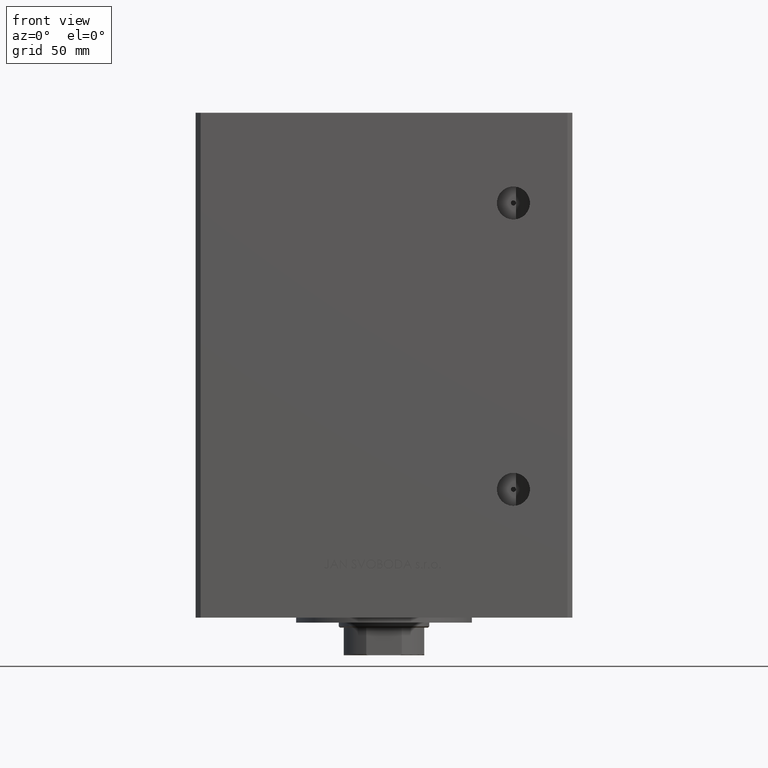
[diagram: clean part render]
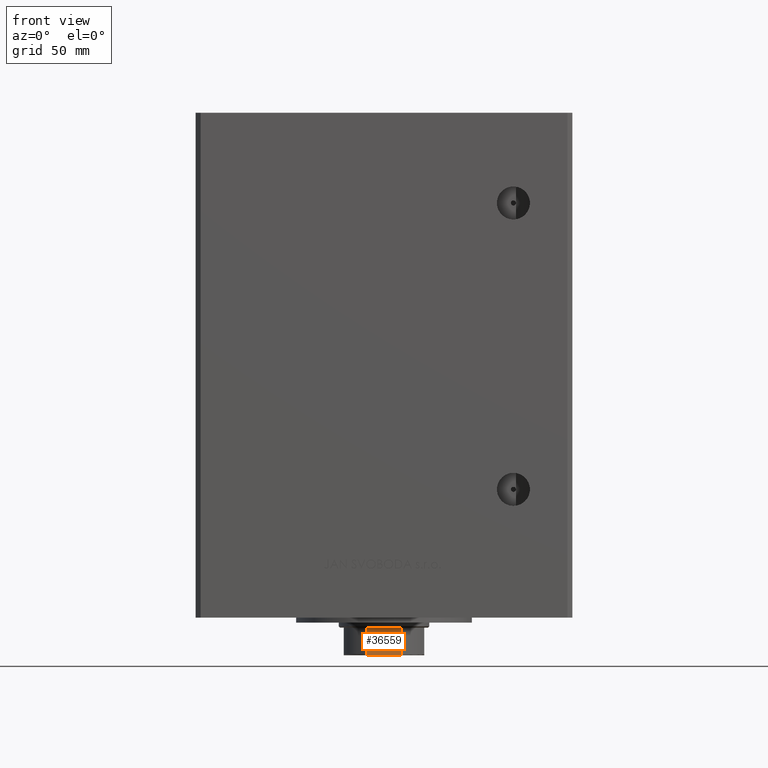
[diagram: same view with one face highlighted and labeled with its STEP entity id]
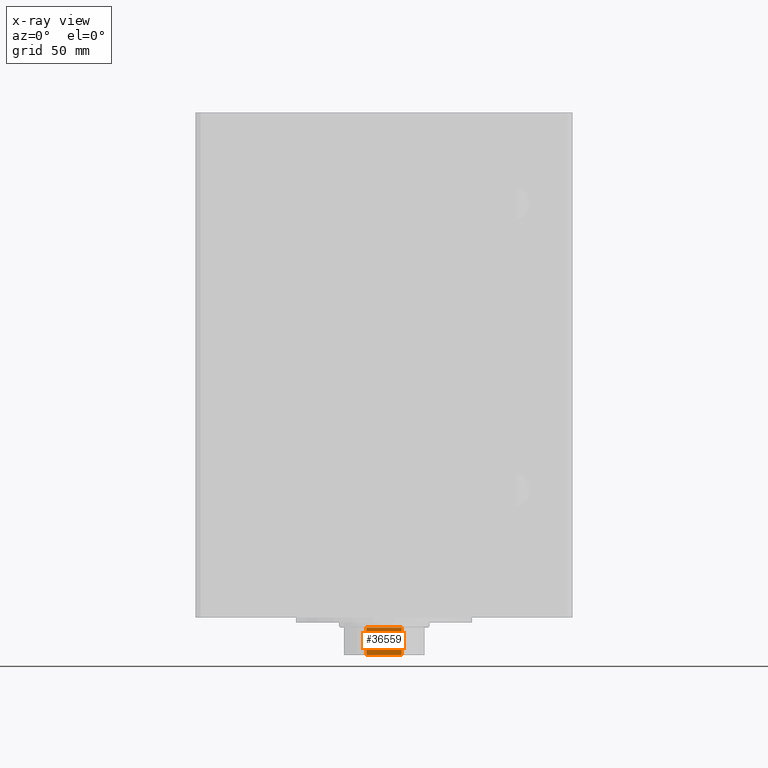
[diagram: x-ray of the same camera — body ghosted, the highlighted face saturated]
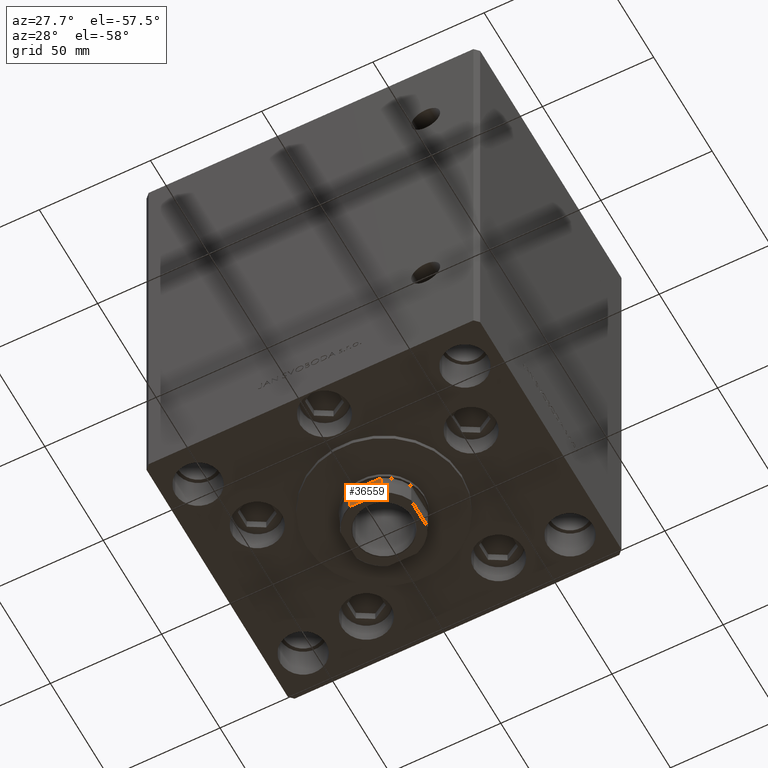
[diagram: same view with one face highlighted and labeled with its STEP entity id]
A machine part, front view. The second image highlights one B-rep face of the part: STEP entity #36559.
The next image is the same camera in x-ray: the body ghosted, the highlighted face saturated — about 0% of this face is hidden behind the body in this view.
A second angle (auxiliary view) of the same face is appended — the face is thin or edge-on in the first view.
In plain terms, the highlighted planar face has unit normal (0, 1, 0).
Its self-contained STEP definition (entity closure, byte-faithful):
#1227 = ORIENTED_EDGE ( 'NONE', *, *, #10283, .T. ) ;
#2907 = VERTEX_POINT ( 'NONE', #25480 ) ;
#3175 = EDGE_CURVE ( 'NONE', #18434, #43580, #17860, .T. ) ;
#3967 = EDGE_LOOP ( 'NONE', ( #19454, #36262, #37146, #1227, #8236, #43670 ) ) ;
#7144 = CARTESIAN_POINT ( 'NONE',  ( -7.088723439378916247, -16.00000000000000000, 171.5000000000000000 ) ) ;
#8236 = ORIENTED_EDGE ( 'NONE', *, *, #29548, .T. ) ;
#8561 = CARTESIAN_POINT ( 'NONE',  ( 6.914772706552263060, -16.00000000000000000, 182.2576711345670901 ) ) ;
#9345 = PLANE ( 'NONE',  #23329 ) ;
#9569 = CARTESIAN_POINT ( 'NONE',  ( -6.967626683430006018, -16.00000000000000000, 182.2212986014228875 ) ) ;
#10027 = CARTESIAN_POINT ( 'NONE',  ( 7.088723439378916247, -16.00000000000000000, -0.001000000000001000089 ) ) ;
#10283 = EDGE_CURVE ( 'NONE', #10939, #2907, #22535, .T. ) ;
#10489 = CARTESIAN_POINT ( 'NONE',  ( 5.999773414835122942, -16.00000000000000355, 182.5000000000000853 ) ) ;
#10939 = VERTEX_POINT ( 'NONE', #7144 ) ;
#12369 = CARTESIAN_POINT ( 'NONE',  ( 7.055665994487712034, -16.00000000000000000, 182.1256422470903829 ) ) ;
#12939 = CARTESIAN_POINT ( 'NONE',  ( -15.99999999999999645, -16.00000000000000355, 182.5000000000000284 ) ) ;
#13124 = CARTESIAN_POINT ( 'NONE',  ( -5.744562646538029504, -16.00000000000000355, 182.5000000000000284 ) ) ;
#13367 = CARTESIAN_POINT ( 'NONE',  ( -6.251780714621276047, -16.00000000000000355, 182.4805079891187347 ) ) ;
#14844 = EDGE_CURVE ( 'NONE', #10939, #43580, #30631, .T. ) ;
#16697 = CARTESIAN_POINT ( 'NONE',  ( -7.088723439378916247, -16.00000000000000000, 182.0000000000000284 ) ) ;
#17860 = B_SPLINE_CURVE_WITH_KNOTS ( 'NONE', 3,
 ( #13124, #28665, #13367, #31732, #47460, #21268, #9569, #20773, #28905, #16697 ),
 .UNSPECIFIED., .F., .F.,
 ( 4, 2, 2, 2, 4 ),
 ( 0.000000000000000000, 0.0007561879621635630858, 0.001134281943245333841, 0.001323328933786239656, 0.001512375924327145904 ),
 .UNSPECIFIED. ) ;
#18434 = VERTEX_POINT ( 'NONE', #30372 ) ;
#19454 = ORIENTED_EDGE ( 'NONE', *, *, #48671, .F. ) ;
#19576 = VECTOR ( 'NONE', #25392, 1000.000000000000000 ) ;
#20773 = CARTESIAN_POINT ( 'NONE',  ( -7.055793701721071898, -15.99999999999999645, 182.1256279161198108 ) ) ;
#21268 = CARTESIAN_POINT ( 'NONE',  ( -6.914158745692617458, -16.00000000000000355, 182.2581288012990512 ) ) ;
#21479 = DIRECTION ( 'NONE',  ( -0.000000000000000000, -0.000000000000000000, 1.000000000000000000 ) ) ;
#22001 = DIRECTION ( 'NONE',  ( -0.000000000000000000, -0.000000000000000000, 1.000000000000000000 ) ) ;
#22035 = EDGE_CURVE ( 'NONE', #36136, #27402, #35267, .T. ) ;
#22535 = LINE ( 'NONE', #45417, #40437 ) ;
#23329 = AXIS2_PLACEMENT_3D ( 'NONE', #32741, #24853, #36557 ) ;
#23751 = CARTESIAN_POINT ( 'NONE',  ( 7.088723439378916247, -16.00000000000000000, 182.0000000000000284 ) ) ;
#24577 = CARTESIAN_POINT ( 'NONE',  ( 5.744562646538024175, -16.00000000000000355, 182.5000000000000284 ) ) ;
#24853 = DIRECTION ( 'NONE',  ( -1.084202172485504557E-16, 1.000000000000000000, 0.000000000000000000 ) ) ;
#25160 = VECTOR ( 'NONE', #22001, 1000.000000000000000 ) ;
#25392 = DIRECTION ( 'NONE',  ( 1.000000000000000000, 1.084202172485504434E-16, 0.000000000000000000 ) ) ;
#25480 = CARTESIAN_POINT ( 'NONE',  ( 7.088723439378916247, -16.00000000000000000, 171.5000000000000000 ) ) ;
#25794 = LINE ( 'NONE', #10027, #35308 ) ;
#26008 = CARTESIAN_POINT ( 'NONE',  ( 5.744562646538024175, -16.00000000000000355, 182.5000000000000284 ) ) ;
#27402 = VERTEX_POINT ( 'NONE', #24577 ) ;
#27903 = CARTESIAN_POINT ( 'NONE',  ( 6.968475375953127049, -15.99999999999999645, 182.2205009019615147 ) ) ;
#28665 = CARTESIAN_POINT ( 'NONE',  ( -5.999698100839998993, -16.00000000000000355, 182.5000000000000284 ) ) ;
#28905 = CARTESIAN_POINT ( 'NONE',  ( -7.088723439378916247, -16.00000000000000711, 182.0655697653147342 ) ) ;
#29548 = EDGE_CURVE ( 'NONE', #2907, #36136, #25794, .T. ) ;
#29831 = CARTESIAN_POINT ( 'NONE',  ( 6.252433022027807930, -16.00000000000000000, 182.4806157152108881 ) ) ;
#30372 = CARTESIAN_POINT ( 'NONE',  ( -5.744562646538029504, -16.00000000000000355, 182.5000000000000284 ) ) ;
#30631 = LINE ( 'NONE', #46124, #25160 ) ;
#31717 = CARTESIAN_POINT ( 'NONE',  ( 7.088723439378916247, -16.00000000000000000, 182.0000000000000284 ) ) ;
#31732 = CARTESIAN_POINT ( 'NONE',  ( -6.620608993398001019, -16.00000000000000355, 182.3919184437073397 ) ) ;
#32741 = CARTESIAN_POINT ( 'NONE',  ( -15.99999999999999645, -16.00000000000000355, 182.5000000000000284 ) ) ;
#35267 = B_SPLINE_CURVE_WITH_KNOTS ( 'NONE', 3,
 ( #31717, #47202, #12369, #27903, #8561, #44145, #41515, #29831, #10489, #26008 ),
 .UNSPECIFIED., .F., .F.,
 ( 4, 2, 2, 2, 4 ),
 ( 0.000000000000000000, 0.0001928955851489301532, 0.0003857911702978603064, 0.0007715823405957613788, 0.001543164681191583039 ),
 .UNSPECIFIED. ) ;
#35308 = VECTOR ( 'NONE', #21479, 1000.000000000000000 ) ;
#36136 = VERTEX_POINT ( 'NONE', #23751 ) ;
#36262 = ORIENTED_EDGE ( 'NONE', *, *, #3175, .T. ) ;
#36557 = DIRECTION ( 'NONE',  ( -1.000000000000000000, -1.084202172485504557E-16, 0.000000000000000000 ) ) ;
#36559 = ADVANCED_FACE ( 'NONE', ( #44178 ), #9345, .F. ) ;
#37146 = ORIENTED_EDGE ( 'NONE', *, *, #14844, .F. ) ;
#40437 = VECTOR ( 'NONE', #44662, 1000.000000000000000 ) ;
#41515 = CARTESIAN_POINT ( 'NONE',  ( 6.623467753754347598, -16.00000000000000000, 182.3910978819202171 ) ) ;
#43580 = VERTEX_POINT ( 'NONE', #45205 ) ;
#43670 = ORIENTED_EDGE ( 'NONE', *, *, #22035, .T. ) ;
#44145 = CARTESIAN_POINT ( 'NONE',  ( 6.746962372739932157, -16.00000000000000000, 182.3511068297690372 ) ) ;
#44178 = FACE_OUTER_BOUND ( 'NONE', #3967, .T. ) ;
#44662 = DIRECTION ( 'NONE',  ( 1.000000000000000000, 1.084202172485504434E-16, 0.000000000000000000 ) ) ;
#45205 = CARTESIAN_POINT ( 'NONE',  ( -7.088723439378916247, -16.00000000000000000, 182.0000000000000284 ) ) ;
#45417 = CARTESIAN_POINT ( 'NONE',  ( -15.99999999999999645, -16.00000000000000355, 171.5000000000000000 ) ) ;
#46124 = CARTESIAN_POINT ( 'NONE',  ( -7.088723439378916247, -16.00000000000000000, -0.001000000000001000089 ) ) ;
#47202 = CARTESIAN_POINT ( 'NONE',  ( 7.088723439378915359, -15.99999999999999645, 182.0653596029795551 ) ) ;
#47460 = CARTESIAN_POINT ( 'NONE',  ( -6.744478600285194858, -16.00000000000000355, 182.3522542963852970 ) ) ;
#48509 = LINE ( 'NONE', #12939, #19576 ) ;
#48671 = EDGE_CURVE ( 'NONE', #18434, #27402, #48509, .T. ) ;